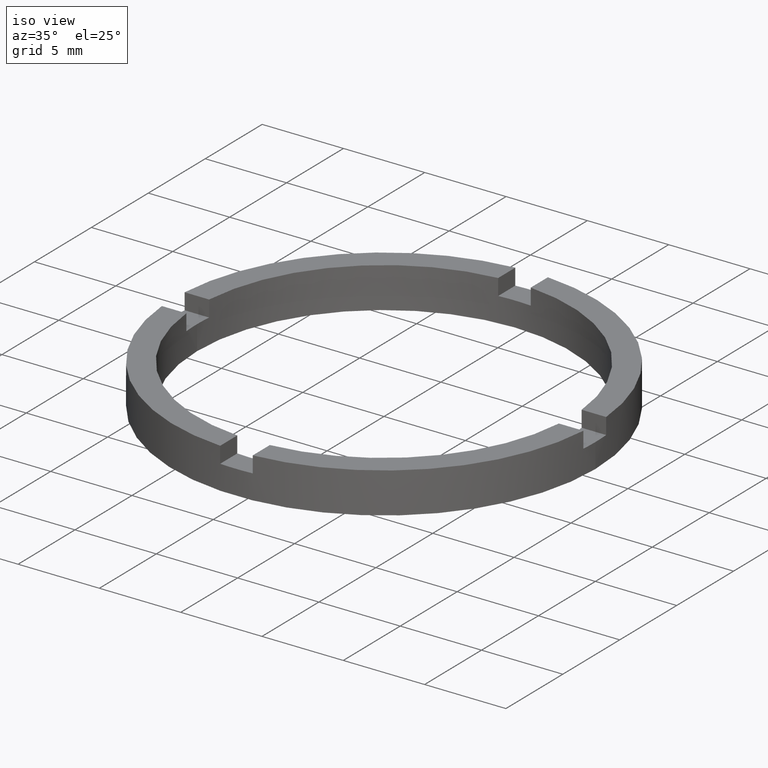
[diagram: clean part render]
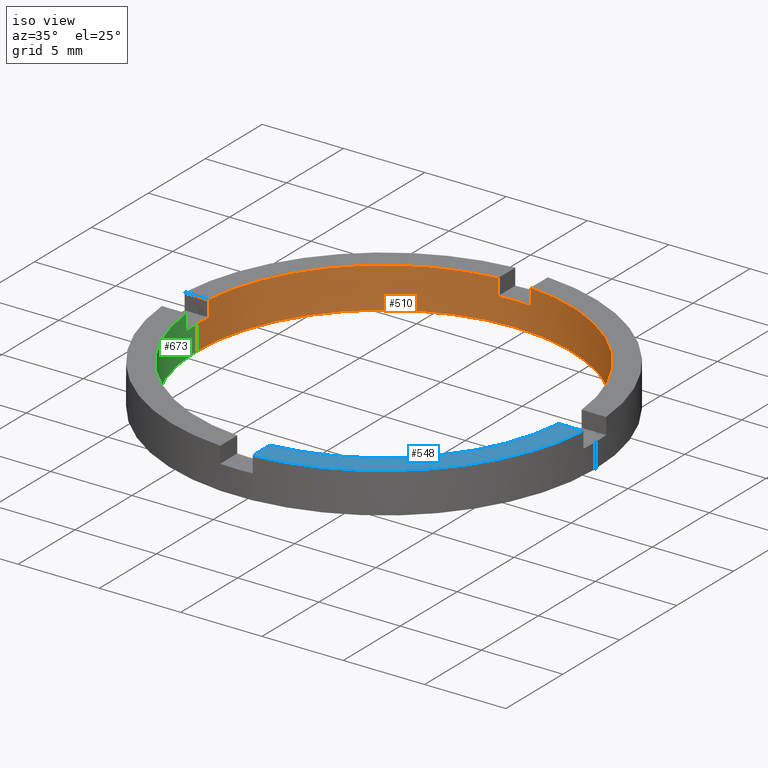
[diagram: same view with three faces highlighted in distinct colors, each labeled with its STEP entity id]
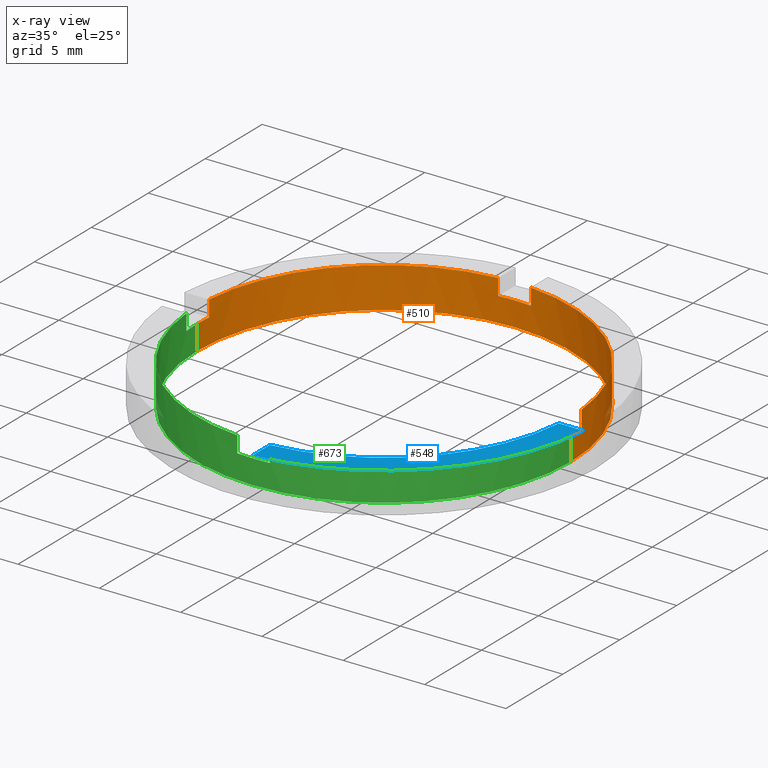
[diagram: x-ray of the same camera — body ghosted, the three highlighted faces saturated]
A machine part, iso view with three faces highlighted in distinct colors.
The next image is the same camera in x-ray (body ghosted, the three faces saturated) — at least one of them is partly hidden behind the body in this view.
Their STEP definitions:

[orange] entity #510 — the highlighted cylindrical surface (partial cylindrical patch) has radius 11.5 mm, axis along (-0, -0, -1).
#2 = EDGE_CURVE ( 'NONE', #416, #145, #178, .T. ) ;
#9 = LINE ( 'NONE', #193, #265 ) ;
#12 = DIRECTION ( 'NONE',  ( 0.000000000000000000, -0.000000000000000000, 1.000000000000000000 ) ) ;
#14 = LINE ( 'NONE', #415, #266 ) ;
#16 = CARTESIAN_POINT ( 'NONE',  ( -11.50000000000000000, 0.000000000000000000, 0.000000000000000000 ) ) ;
#19 = LINE ( 'NONE', #401, #285 ) ;
#24 = AXIS2_PLACEMENT_3D ( 'NONE', #52, #256, #405 ) ;
#30 = EDGE_CURVE ( 'NONE', #118, #359, #734, .T. ) ;
#32 = CIRCLE ( 'NONE', #468, 11.50000000000000000 ) ;
#36 = DIRECTION ( 'NONE',  ( 1.000000000000000000, 0.000000000000000000, 0.000000000000000000 ) ) ;
#37 = AXIS2_PLACEMENT_3D ( 'NONE', #712, #335, #771 ) ;
#52 = CARTESIAN_POINT ( 'NONE',  ( 0.000000000000000000, 0.000000000000000000, 2.500000000000000000 ) ) ;
#61 = AXIS2_PLACEMENT_3D ( 'NONE', #582, #476, #587 ) ;
#67 = DIRECTION ( 'NONE',  ( 0.000000000000000000, 0.000000000000000000, 1.000000000000000000 ) ) ;
#80 = CARTESIAN_POINT ( 'NONE',  ( 11.50000000000000000, 1.408343819019456176E-15, 0.000000000000000000 ) ) ;
#96 = ORIENTED_EDGE ( 'NONE', *, *, #30, .T. ) ;
#99 = CARTESIAN_POINT ( 'NONE',  ( 11.45643923738961334, 0.9999999999998400169, 2.500000000000000000 ) ) ;
#109 = DIRECTION ( 'NONE',  ( 0.000000000000000000, 0.000000000000000000, 1.000000000000000000 ) ) ;
#118 = VERTEX_POINT ( 'NONE', #626 ) ;
#121 = ORIENTED_EDGE ( 'NONE', *, *, #313, .T. ) ;
#124 = CARTESIAN_POINT ( 'NONE',  ( 11.45643923738961334, 0.9999999999998400169, 1.500000000000000000 ) ) ;
#131 = CARTESIAN_POINT ( 'NONE',  ( -11.45643923738960090, 0.9999999999999779066, 2.500000000000000000 ) ) ;
#141 = ORIENTED_EDGE ( 'NONE', *, *, #585, .F. ) ;
#145 = VERTEX_POINT ( 'NONE', #131 ) ;
#151 = EDGE_LOOP ( 'NONE', ( #680, #700, #169, #430, #603, #121, #141, #683, #366, #370, #96, #632 ) ) ;
#169 = ORIENTED_EDGE ( 'NONE', *, *, #714, .F. ) ;
#175 = DIRECTION ( 'NONE',  ( -0.000000000000000000, -0.000000000000000000, -1.000000000000000000 ) ) ;
#177 = VERTEX_POINT ( 'NONE', #217 ) ;
#178 = CIRCLE ( 'NONE', #282, 11.50000000000000000 ) ;
#184 = CARTESIAN_POINT ( 'NONE',  ( 11.50000000000000000, 1.408343819019456176E-15, 2.500000000000000000 ) ) ;
#190 = CARTESIAN_POINT ( 'NONE',  ( 0.000000000000000000, 0.000000000000000000, 1.500000000000000000 ) ) ;
#193 = CARTESIAN_POINT ( 'NONE',  ( -1.000000000000024647, 11.45643923738959735, 2.500000000000000000 ) ) ;
#196 = DIRECTION ( 'NONE',  ( 1.000000000000000000, 0.000000000000000000, 0.000000000000000000 ) ) ;
#200 = EDGE_CURVE ( 'NONE', #615, #202, #242, .T. ) ;
#202 = VERTEX_POINT ( 'NONE', #756 ) ;
#212 = VECTOR ( 'NONE', #704, 1000.000000000000000 ) ;
#217 = CARTESIAN_POINT ( 'NONE',  ( 11.50000000000000000, 1.408343819019456176E-15, 1.500000000000000000 ) ) ;
#228 = VECTOR ( 'NONE', #687, 1000.000000000000000 ) ;
#242 = LINE ( 'NONE', #605, #228 ) ;
#244 = CIRCLE ( 'NONE', #521, 11.50000000000000000 ) ;
#256 = DIRECTION ( 'NONE',  ( -0.000000000000000000, -0.000000000000000000, -1.000000000000000000 ) ) ;
#265 = VECTOR ( 'NONE', #175, 1000.000000000000000 ) ;
#266 = VECTOR ( 'NONE', #578, 1000.000000000000000 ) ;
#273 = EDGE_CURVE ( 'NONE', #177, #362, #751, .T. ) ;
#282 = AXIS2_PLACEMENT_3D ( 'NONE', #762, #67, #454 ) ;
#285 = VECTOR ( 'NONE', #576, 1000.000000000000000 ) ;
#292 = CARTESIAN_POINT ( 'NONE',  ( -1.000000000000024647, 11.45643923738959735, 2.500000000000000000 ) ) ;
#299 = CARTESIAN_POINT ( 'NONE',  ( 0.000000000000000000, 0.000000000000000000, 1.500000000000000000 ) ) ;
#313 = EDGE_CURVE ( 'NONE', #615, #452, #244, .T. ) ;
#335 = DIRECTION ( 'NONE',  ( 0.000000000000000000, 0.000000000000000000, 1.000000000000000000 ) ) ;
#341 = VERTEX_POINT ( 'NONE', #777 ) ;
#343 = CARTESIAN_POINT ( 'NONE',  ( -1.000000000000024647, 11.45643923738959735, 1.500000000000000000 ) ) ;
#359 = VERTEX_POINT ( 'NONE', #16 ) ;
#362 = VERTEX_POINT ( 'NONE', #80 ) ;
#366 = ORIENTED_EDGE ( 'NONE', *, *, #580, .F. ) ;
#369 = VERTEX_POINT ( 'NONE', #99 ) ;
#370 = ORIENTED_EDGE ( 'NONE', *, *, #547, .T. ) ;
#401 = CARTESIAN_POINT ( 'NONE',  ( 11.45643923738961334, 0.9999999999998400169, 2.500000000000000000 ) ) ;
#405 = DIRECTION ( 'NONE',  ( -1.000000000000000000, 0.000000000000000000, 0.000000000000000000 ) ) ;
#415 = CARTESIAN_POINT ( 'NONE',  ( -11.45643923738960090, 0.9999999999999779066, 2.500000000000000000 ) ) ;
#416 = VERTEX_POINT ( 'NONE', #292 ) ;
#430 = ORIENTED_EDGE ( 'NONE', *, *, #601, .T. ) ;
#452 = VERTEX_POINT ( 'NONE', #343 ) ;
#454 = DIRECTION ( 'NONE',  ( 1.000000000000000000, 0.000000000000000000, 0.000000000000000000 ) ) ;
#468 = AXIS2_PLACEMENT_3D ( 'NONE', #190, #109, #774 ) ;
#476 = DIRECTION ( 'NONE',  ( 0.000000000000000000, 0.000000000000000000, 1.000000000000000000 ) ) ;
#482 = CIRCLE ( 'NONE', #778, 11.50000000000000000 ) ;
#492 = VECTOR ( 'NONE', #527, 1000.000000000000000 ) ;
#510 = ADVANCED_FACE ( 'NONE', ( #758 ), #738, .F. ) ;
#519 = CARTESIAN_POINT ( 'NONE',  ( -11.50000000000000000, 0.000000000000000000, 2.500000000000000000 ) ) ;
#521 = AXIS2_PLACEMENT_3D ( 'NONE', #299, #12, #196 ) ;
#523 = CIRCLE ( 'NONE', #37, 11.50000000000000000 ) ;
#527 = DIRECTION ( 'NONE',  ( -0.000000000000000000, -0.000000000000000000, -1.000000000000000000 ) ) ;
#546 = DIRECTION ( 'NONE',  ( 0.000000000000000000, 0.000000000000000000, 1.000000000000000000 ) ) ;
#547 = EDGE_CURVE ( 'NONE', #341, #118, #482, .T. ) ;
#556 = CIRCLE ( 'NONE', #61, 11.50000000000000000 ) ;
#566 = EDGE_CURVE ( 'NONE', #362, #359, #523, .T. ) ;
#576 = DIRECTION ( 'NONE',  ( -0.000000000000000000, -0.000000000000000000, -1.000000000000000000 ) ) ;
#578 = DIRECTION ( 'NONE',  ( 0.000000000000000000, 0.000000000000000000, 1.000000000000000000 ) ) ;
#580 = EDGE_CURVE ( 'NONE', #341, #145, #14, .T. ) ;
#582 = CARTESIAN_POINT ( 'NONE',  ( 0.000000000000000000, 0.000000000000000000, 2.500000000000000000 ) ) ;
#585 = EDGE_CURVE ( 'NONE', #416, #452, #9, .T. ) ;
#587 = DIRECTION ( 'NONE',  ( 1.000000000000000000, 0.000000000000000000, 0.000000000000000000 ) ) ;
#601 = EDGE_CURVE ( 'NONE', #369, #202, #556, .T. ) ;
#603 = ORIENTED_EDGE ( 'NONE', *, *, #200, .F. ) ;
#605 = CARTESIAN_POINT ( 'NONE',  ( 0.9999999999999753530, 11.45643923738960090, 2.500000000000000000 ) ) ;
#615 = VERTEX_POINT ( 'NONE', #660 ) ;
#626 = CARTESIAN_POINT ( 'NONE',  ( -11.50000000000000000, 0.000000000000000000, 1.500000000000000000 ) ) ;
#632 = ORIENTED_EDGE ( 'NONE', *, *, #566, .F. ) ;
#655 = VERTEX_POINT ( 'NONE', #124 ) ;
#660 = CARTESIAN_POINT ( 'NONE',  ( 0.9999999999999753530, 11.45643923738960090, 1.500000000000000000 ) ) ;
#680 = ORIENTED_EDGE ( 'NONE', *, *, #273, .F. ) ;
#683 = ORIENTED_EDGE ( 'NONE', *, *, #2, .T. ) ;
#687 = DIRECTION ( 'NONE',  ( 0.000000000000000000, 0.000000000000000000, 1.000000000000000000 ) ) ;
#700 = ORIENTED_EDGE ( 'NONE', *, *, #732, .T. ) ;
#704 = DIRECTION ( 'NONE',  ( -0.000000000000000000, -0.000000000000000000, -1.000000000000000000 ) ) ;
#712 = CARTESIAN_POINT ( 'NONE',  ( 0.000000000000000000, 0.000000000000000000, 0.000000000000000000 ) ) ;
#714 = EDGE_CURVE ( 'NONE', #369, #655, #19, .T. ) ;
#726 = CARTESIAN_POINT ( 'NONE',  ( 0.000000000000000000, 0.000000000000000000, 1.500000000000000000 ) ) ;
#732 = EDGE_CURVE ( 'NONE', #177, #655, #32, .T. ) ;
#734 = LINE ( 'NONE', #519, #212 ) ;
#738 = CYLINDRICAL_SURFACE ( 'NONE', #24, 11.50000000000000000 ) ;
#751 = LINE ( 'NONE', #184, #492 ) ;
#756 = CARTESIAN_POINT ( 'NONE',  ( 0.9999999999999753530, 11.45643923738960090, 2.500000000000000000 ) ) ;
#758 = FACE_OUTER_BOUND ( 'NONE', #151, .T. ) ;
#762 = CARTESIAN_POINT ( 'NONE',  ( 0.000000000000000000, 0.000000000000000000, 2.500000000000000000 ) ) ;
#771 = DIRECTION ( 'NONE',  ( 1.000000000000000000, 0.000000000000000000, 0.000000000000000000 ) ) ;
#774 = DIRECTION ( 'NONE',  ( 1.000000000000000000, 0.000000000000000000, 0.000000000000000000 ) ) ;
#777 = CARTESIAN_POINT ( 'NONE',  ( -11.45643923738960090, 0.9999999999999779066, 1.500000000000000000 ) ) ;
#778 = AXIS2_PLACEMENT_3D ( 'NONE', #726, #546, #36 ) ;

[blue] entity #548 — the highlighted planar face has unit normal (0, 0, 1).
#20 = EDGE_CURVE ( 'NONE', #100, #609, #453, .T. ) ;
#39 = CARTESIAN_POINT ( 'NONE',  ( 0.000000000000000000, 0.000000000000000000, 2.500000000000000000 ) ) ;
#65 = CARTESIAN_POINT ( 'NONE',  ( 11.45643923738958669, -1.000000000000160094, 2.500000000000000000 ) ) ;
#100 = VERTEX_POINT ( 'NONE', #192 ) ;
#107 = CARTESIAN_POINT ( 'NONE',  ( 0.9999999999998363531, -11.45643923738961334, 2.500000000000000000 ) ) ;
#149 = EDGE_CURVE ( 'NONE', #160, #609, #234, .T. ) ;
#160 = VERTEX_POINT ( 'NONE', #65 ) ;
#162 = EDGE_CURVE ( 'NONE', #100, #417, #750, .T. ) ;
#192 = CARTESIAN_POINT ( 'NONE',  ( 0.9999999999998365752, -12.96148139681572964, 2.500000000000000000 ) ) ;
#232 = DIRECTION ( 'NONE',  ( 0.000000000000000000, 0.000000000000000000, 1.000000000000000000 ) ) ;
#234 = LINE ( 'NONE', #555, #487 ) ;
#240 = VECTOR ( 'NONE', #272, 1000.000000000000000 ) ;
#241 = PLANE ( 'NONE',  #293 ) ;
#255 = AXIS2_PLACEMENT_3D ( 'NONE', #514, #232, #315 ) ;
#272 = DIRECTION ( 'NONE',  ( -1.301042606982605074E-16, 1.000000000000000000, -0.000000000000000000 ) ) ;
#293 = AXIS2_PLACEMENT_3D ( 'NONE', #776, #649, #719 ) ;
#296 = CIRCLE ( 'NONE', #375, 11.50000000000000000 ) ;
#315 = DIRECTION ( 'NONE',  ( 1.000000000000000000, 0.000000000000000000, 0.000000000000000000 ) ) ;
#371 = CARTESIAN_POINT ( 'NONE',  ( 0.9999999999998352429, -3.000000000000176303, 2.500000000000000000 ) ) ;
#375 = AXIS2_PLACEMENT_3D ( 'NONE', #39, #783, #569 ) ;
#407 = ORIENTED_EDGE ( 'NONE', *, *, #766, .F. ) ;
#417 = VERTEX_POINT ( 'NONE', #107 ) ;
#422 = ORIENTED_EDGE ( 'NONE', *, *, #20, .T. ) ;
#438 = CARTESIAN_POINT ( 'NONE',  ( 12.96148139681570655, -1.000000000000159872, 2.500000000000000000 ) ) ;
#453 = CIRCLE ( 'NONE', #255, 12.99999999999999822 ) ;
#487 = VECTOR ( 'NONE', #677, 1000.000000000000000 ) ;
#490 = FACE_OUTER_BOUND ( 'NONE', #651, .T. ) ;
#514 = CARTESIAN_POINT ( 'NONE',  ( 0.000000000000000000, 0.000000000000000000, 2.500000000000000000 ) ) ;
#548 = ADVANCED_FACE ( 'NONE', ( #490 ), #241, .T. ) ;
#555 = CARTESIAN_POINT ( 'NONE',  ( 2.999999999999992450, -1.000000000000160316, 2.500000000000000000 ) ) ;
#569 = DIRECTION ( 'NONE',  ( 1.000000000000000000, 0.000000000000000000, 0.000000000000000000 ) ) ;
#609 = VERTEX_POINT ( 'NONE', #438 ) ;
#649 = DIRECTION ( 'NONE',  ( 0.000000000000000000, 0.000000000000000000, 1.000000000000000000 ) ) ;
#651 = EDGE_LOOP ( 'NONE', ( #662, #407, #713, #422 ) ) ;
#662 = ORIENTED_EDGE ( 'NONE', *, *, #149, .F. ) ;
#677 = DIRECTION ( 'NONE',  ( 1.000000000000000000, 4.336808689942017120E-17, 0.000000000000000000 ) ) ;
#713 = ORIENTED_EDGE ( 'NONE', *, *, #162, .F. ) ;
#719 = DIRECTION ( 'NONE',  ( 1.000000000000000000, 0.000000000000000000, -0.000000000000000000 ) ) ;
#750 = LINE ( 'NONE', #371, #240 ) ;
#766 = EDGE_CURVE ( 'NONE', #417, #160, #296, .T. ) ;
#776 = CARTESIAN_POINT ( 'NONE',  ( 0.000000000000000000, 0.000000000000000000, 2.500000000000000000 ) ) ;
#783 = DIRECTION ( 'NONE',  ( 0.000000000000000000, 0.000000000000000000, 1.000000000000000000 ) ) ;

[green] entity #673 — the highlighted cylindrical surface (partial cylindrical patch) has radius 11.5 mm, axis along (-0, -0, -1).
#5 = CIRCLE ( 'NONE', #323, 11.50000000000000000 ) ;
#10 = CARTESIAN_POINT ( 'NONE',  ( 0.9999999999998363531, -11.45643923738961334, 2.500000000000000000 ) ) ;
#13 = CARTESIAN_POINT ( 'NONE',  ( -1.000000000000163647, -11.45643923738958669, 1.500000000000000000 ) ) ;
#16 = CARTESIAN_POINT ( 'NONE',  ( -11.50000000000000000, 0.000000000000000000, 0.000000000000000000 ) ) ;
#23 = CARTESIAN_POINT ( 'NONE',  ( -1.000000000000163647, -11.45643923738958669, 2.500000000000000000 ) ) ;
#30 = EDGE_CURVE ( 'NONE', #118, #359, #734, .T. ) ;
#33 = FACE_OUTER_BOUND ( 'NONE', #411, .T. ) ;
#39 = CARTESIAN_POINT ( 'NONE',  ( 0.000000000000000000, 0.000000000000000000, 2.500000000000000000 ) ) ;
#44 = VECTOR ( 'NONE', #286, 1000.000000000000000 ) ;
#50 = DIRECTION ( 'NONE',  ( -0.000000000000000000, -0.000000000000000000, -1.000000000000000000 ) ) ;
#51 = CARTESIAN_POINT ( 'NONE',  ( 11.45643923738958669, -1.000000000000160094, 1.500000000000000000 ) ) ;
#63 = DIRECTION ( 'NONE',  ( -0.000000000000000000, -0.000000000000000000, -1.000000000000000000 ) ) ;
#65 = CARTESIAN_POINT ( 'NONE',  ( 11.45643923738958669, -1.000000000000160094, 2.500000000000000000 ) ) ;
#70 = DIRECTION ( 'NONE',  ( 0.000000000000000000, 0.000000000000000000, 1.000000000000000000 ) ) ;
#71 = AXIS2_PLACEMENT_3D ( 'NONE', #355, #360, #264 ) ;
#76 = ORIENTED_EDGE ( 'NONE', *, *, #648, .F. ) ;
#79 = ORIENTED_EDGE ( 'NONE', *, *, #675, .F. ) ;
#80 = CARTESIAN_POINT ( 'NONE',  ( 11.50000000000000000, 1.408343819019456176E-15, 0.000000000000000000 ) ) ;
#81 = DIRECTION ( 'NONE',  ( -0.000000000000000000, -0.000000000000000000, -1.000000000000000000 ) ) ;
#98 = VERTEX_POINT ( 'NONE', #51 ) ;
#107 = CARTESIAN_POINT ( 'NONE',  ( 0.9999999999998363531, -11.45643923738961334, 2.500000000000000000 ) ) ;
#118 = VERTEX_POINT ( 'NONE', #626 ) ;
#133 = ORIENTED_EDGE ( 'NONE', *, *, #191, .T. ) ;
#143 = EDGE_CURVE ( 'NONE', #359, #362, #744, .T. ) ;
#160 = VERTEX_POINT ( 'NONE', #65 ) ;
#161 = ORIENTED_EDGE ( 'NONE', *, *, #589, .F. ) ;
#171 = VERTEX_POINT ( 'NONE', #308 ) ;
#177 = VERTEX_POINT ( 'NONE', #217 ) ;
#182 = ORIENTED_EDGE ( 'NONE', *, *, #206, .F. ) ;
#183 = ORIENTED_EDGE ( 'NONE', *, *, #273, .T. ) ;
#184 = CARTESIAN_POINT ( 'NONE',  ( 11.50000000000000000, 1.408343819019456176E-15, 2.500000000000000000 ) ) ;
#191 = EDGE_CURVE ( 'NONE', #628, #392, #494, .T. ) ;
#206 = EDGE_CURVE ( 'NONE', #623, #392, #249, .T. ) ;
#212 = VECTOR ( 'NONE', #704, 1000.000000000000000 ) ;
#217 = CARTESIAN_POINT ( 'NONE',  ( 11.50000000000000000, 1.408343819019456176E-15, 1.500000000000000000 ) ) ;
#238 = CIRCLE ( 'NONE', #656, 11.50000000000000000 ) ;
#247 = CARTESIAN_POINT ( 'NONE',  ( 11.45643923738958669, -1.000000000000160094, 2.500000000000000000 ) ) ;
#249 = LINE ( 'NONE', #23, #745 ) ;
#261 = CARTESIAN_POINT ( 'NONE',  ( -11.45643923738959735, -1.000000000000022204, 2.500000000000000000 ) ) ;
#262 = EDGE_CURVE ( 'NONE', #118, #614, #737, .T. ) ;
#264 = DIRECTION ( 'NONE',  ( 1.000000000000000000, 0.000000000000000000, 0.000000000000000000 ) ) ;
#268 = LINE ( 'NONE', #247, #44 ) ;
#273 = EDGE_CURVE ( 'NONE', #177, #362, #751, .T. ) ;
#280 = CARTESIAN_POINT ( 'NONE',  ( 0.000000000000000000, 0.000000000000000000, 1.500000000000000000 ) ) ;
#281 = DIRECTION ( 'NONE',  ( -0.000000000000000000, 0.000000000000000000, 1.000000000000000000 ) ) ;
#286 = DIRECTION ( 'NONE',  ( 0.000000000000000000, 0.000000000000000000, 1.000000000000000000 ) ) ;
#290 = LINE ( 'NONE', #552, #534 ) ;
#296 = CIRCLE ( 'NONE', #375, 11.50000000000000000 ) ;
#298 = VECTOR ( 'NONE', #50, 1000.000000000000000 ) ;
#308 = CARTESIAN_POINT ( 'NONE',  ( 0.9999999999998363531, -11.45643923738961334, 1.500000000000000000 ) ) ;
#309 = CARTESIAN_POINT ( 'NONE',  ( 0.000000000000000000, 0.000000000000000000, 2.500000000000000000 ) ) ;
#316 = DIRECTION ( 'NONE',  ( 0.000000000000000000, 0.000000000000000000, 1.000000000000000000 ) ) ;
#321 = CARTESIAN_POINT ( 'NONE',  ( -1.000000000000163647, -11.45643923738958669, 2.500000000000000000 ) ) ;
#323 = AXIS2_PLACEMENT_3D ( 'NONE', #723, #281, #382 ) ;
#327 = EDGE_CURVE ( 'NONE', #98, #177, #238, .T. ) ;
#345 = ORIENTED_EDGE ( 'NONE', *, *, #766, .T. ) ;
#355 = CARTESIAN_POINT ( 'NONE',  ( 0.000000000000000000, 0.000000000000000000, 0.000000000000000000 ) ) ;
#359 = VERTEX_POINT ( 'NONE', #16 ) ;
#360 = DIRECTION ( 'NONE',  ( 0.000000000000000000, 0.000000000000000000, 1.000000000000000000 ) ) ;
#362 = VERTEX_POINT ( 'NONE', #80 ) ;
#367 = DIRECTION ( 'NONE',  ( 0.000000000000000000, 0.000000000000000000, 1.000000000000000000 ) ) ;
#368 = AXIS2_PLACEMENT_3D ( 'NONE', #309, #367, #562 ) ;
#375 = AXIS2_PLACEMENT_3D ( 'NONE', #39, #783, #569 ) ;
#382 = DIRECTION ( 'NONE',  ( 1.000000000000000000, 0.000000000000000000, 0.000000000000000000 ) ) ;
#392 = VERTEX_POINT ( 'NONE', #321 ) ;
#396 = ORIENTED_EDGE ( 'NONE', *, *, #30, .F. ) ;
#411 = EDGE_LOOP ( 'NONE', ( #423, #183, #596, #396, #711, #76, #133, #182, #600, #79, #345, #161 ) ) ;
#414 = DIRECTION ( 'NONE',  ( 1.000000000000000000, 0.000000000000000000, 0.000000000000000000 ) ) ;
#417 = VERTEX_POINT ( 'NONE', #107 ) ;
#423 = ORIENTED_EDGE ( 'NONE', *, *, #327, .T. ) ;
#492 = VECTOR ( 'NONE', #527, 1000.000000000000000 ) ;
#494 = CIRCLE ( 'NONE', #368, 11.50000000000000000 ) ;
#503 = CARTESIAN_POINT ( 'NONE',  ( -11.45643923738959735, -1.000000000000022204, 1.500000000000000000 ) ) ;
#515 = AXIS2_PLACEMENT_3D ( 'NONE', #280, #316, #414 ) ;
#519 = CARTESIAN_POINT ( 'NONE',  ( -11.50000000000000000, 0.000000000000000000, 2.500000000000000000 ) ) ;
#527 = DIRECTION ( 'NONE',  ( -0.000000000000000000, -0.000000000000000000, -1.000000000000000000 ) ) ;
#534 = VECTOR ( 'NONE', #63, 1000.000000000000000 ) ;
#535 = CARTESIAN_POINT ( 'NONE',  ( 0.000000000000000000, 0.000000000000000000, 2.500000000000000000 ) ) ;
#541 = LINE ( 'NONE', #10, #298 ) ;
#545 = CARTESIAN_POINT ( 'NONE',  ( 0.000000000000000000, 0.000000000000000000, 1.500000000000000000 ) ) ;
#552 = CARTESIAN_POINT ( 'NONE',  ( -11.45643923738959735, -1.000000000000022204, 2.500000000000000000 ) ) ;
#557 = CYLINDRICAL_SURFACE ( 'NONE', #768, 11.50000000000000000 ) ;
#560 = EDGE_CURVE ( 'NONE', #623, #171, #5, .T. ) ;
#562 = DIRECTION ( 'NONE',  ( 1.000000000000000000, 0.000000000000000000, 0.000000000000000000 ) ) ;
#569 = DIRECTION ( 'NONE',  ( 1.000000000000000000, 0.000000000000000000, 0.000000000000000000 ) ) ;
#588 = DIRECTION ( 'NONE',  ( 1.000000000000000000, 0.000000000000000000, 0.000000000000000000 ) ) ;
#589 = EDGE_CURVE ( 'NONE', #98, #160, #268, .T. ) ;
#596 = ORIENTED_EDGE ( 'NONE', *, *, #143, .F. ) ;
#600 = ORIENTED_EDGE ( 'NONE', *, *, #560, .T. ) ;
#614 = VERTEX_POINT ( 'NONE', #503 ) ;
#623 = VERTEX_POINT ( 'NONE', #13 ) ;
#626 = CARTESIAN_POINT ( 'NONE',  ( -11.50000000000000000, 0.000000000000000000, 1.500000000000000000 ) ) ;
#628 = VERTEX_POINT ( 'NONE', #261 ) ;
#648 = EDGE_CURVE ( 'NONE', #628, #614, #290, .T. ) ;
#656 = AXIS2_PLACEMENT_3D ( 'NONE', #545, #659, #588 ) ;
#659 = DIRECTION ( 'NONE',  ( 0.000000000000000000, 0.000000000000000000, 1.000000000000000000 ) ) ;
#673 = ADVANCED_FACE ( 'NONE', ( #33 ), #557, .F. ) ;
#675 = EDGE_CURVE ( 'NONE', #417, #171, #541, .T. ) ;
#704 = DIRECTION ( 'NONE',  ( -0.000000000000000000, -0.000000000000000000, -1.000000000000000000 ) ) ;
#711 = ORIENTED_EDGE ( 'NONE', *, *, #262, .T. ) ;
#723 = CARTESIAN_POINT ( 'NONE',  ( 0.000000000000000000, 0.000000000000000000, 1.500000000000000000 ) ) ;
#731 = DIRECTION ( 'NONE',  ( -1.000000000000000000, 0.000000000000000000, 0.000000000000000000 ) ) ;
#734 = LINE ( 'NONE', #519, #212 ) ;
#737 = CIRCLE ( 'NONE', #515, 11.50000000000000000 ) ;
#744 = CIRCLE ( 'NONE', #71, 11.50000000000000000 ) ;
#745 = VECTOR ( 'NONE', #70, 1000.000000000000000 ) ;
#751 = LINE ( 'NONE', #184, #492 ) ;
#766 = EDGE_CURVE ( 'NONE', #417, #160, #296, .T. ) ;
#768 = AXIS2_PLACEMENT_3D ( 'NONE', #535, #81, #731 ) ;
#783 = DIRECTION ( 'NONE',  ( 0.000000000000000000, 0.000000000000000000, 1.000000000000000000 ) ) ;